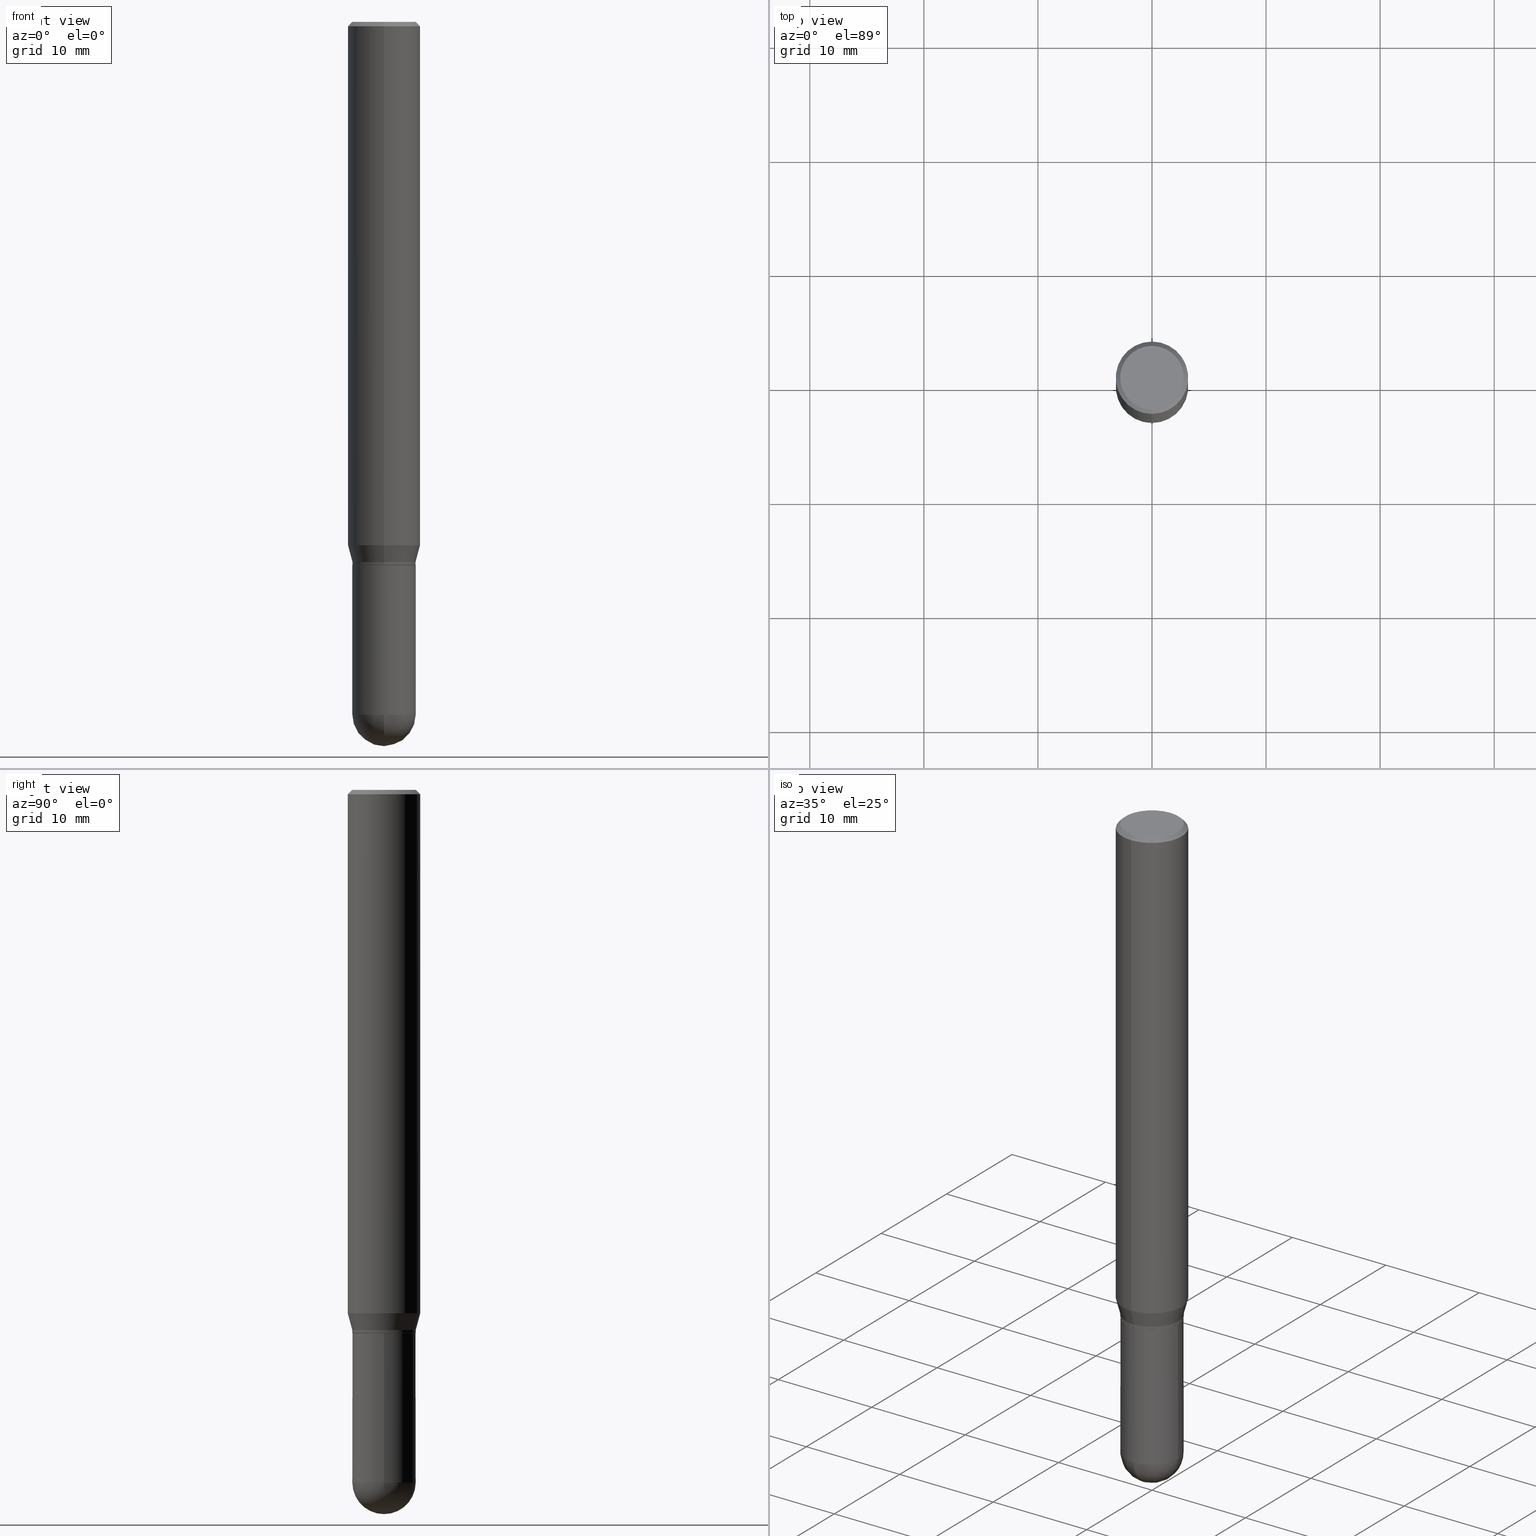
[diagram: canonical four-view strip — front | top / right | iso, engineering-drawing reading convention]
A machine part, canonical four-view strip (front | top / right | iso — engineering-drawing reading convention). The complete STEP part file that produces these views, byte-faithful:
ISO-10303-21;
HEADER;
FILE_DESCRIPTION (( 'STEP AP203' ),
    '1' );
FILE_NAME ('30864.STEP',
    '2024-03-08T15:39:26',
    ( '' ),
    ( '' ),
    'SwSTEP 2.0',
    'SolidWorks 2023',
    '' );
FILE_SCHEMA (( 'CONFIG_CONTROL_DESIGN' ));
ENDSEC;

DATA;
#1 = ORIENTED_EDGE ( 'NONE', *, *, #460, .T. ) ;
#2 = CALENDAR_DATE ( 2024, 8, 3 ) ;
#3 = CARTESIAN_POINT ( 'NONE',  ( 4.585254011597131119E-29, -6.546527510330898707E-15, -1.875000000000000000 ) ) ;
#4 = ADVANCED_FACE ( 'NONE', ( #232 ), #341, .T. ) ;
#5 = DIRECTION ( 'NONE',  ( 4.937700262164543309E-15, 0.7071067811865444641, -0.7071067811865505703 ) ) ;
#6 = ADVANCED_FACE ( 'NONE', ( #311 ), #502, .F. ) ;
#7 = APPROVAL_PERSON_ORGANIZATION ( #441, #371, #352 ) ;
#8 = DIRECTION ( 'NONE',  ( -6.982962677686265133E-15, -1.000000000000000000, 2.508584016220627649E-15 ) ) ;
#9 = AXIS2_PLACEMENT_3D ( 'NONE', #129, #236, #316 ) ;
#10 = CARTESIAN_POINT ( 'NONE',  ( 4.560450599855679736E-29, -6.512112089099771306E-15, -1.864999999999999991 ) ) ;
#11 = CARTESIAN_POINT ( 'NONE',  ( 7.773337529215939572E-16, 0.1093999999999932665, -1.874500000000000499 ) ) ;
#12 = EDGE_CURVE ( 'NONE', #175, #270, #33, .T. ) ;
#13 = PRODUCT_DEFINITION_SHAPE ( 'NONE', 'NONE',  #499 ) ;
#14 = AXIS2_PLACEMENT_3D ( 'NONE', #41, #136, #444 ) ;
#15 = DIRECTION ( 'NONE',  ( -6.982962677686265133E-15, -1.000000000000000000, 2.508584016220627649E-15 ) ) ;
#16 = LOCAL_TIME ( 10, 39, 26.00000000000000000, #50 ) ;
#17 = CARTESIAN_POINT ( 'NONE',  ( 4.584903418085470008E-29, -6.547029580194142106E-15, -1.875000000000000000 ) ) ;
#18 = ORIENTED_EDGE ( 'NONE', *, *, #263, .F. ) ;
#19 = PRODUCT ( '30864', '30864', '', ( #471 ) ) ;
#20 = FACE_OUTER_BOUND ( 'NONE', #430, .T. ) ;
#21 = DIRECTION ( 'NONE',  ( -2.445468806185136597E-29, 3.491481338843145583E-15, 1.000000000000000000 ) ) ;
#22 = VECTOR ( 'NONE', #445, 39.37007874015748143 ) ;
#23 = VERTEX_POINT ( 'NONE', #124 ) ;
#24 = CIRCLE ( 'NONE', #161, 0.1250000000000000000 ) ;
#25 = DESIGN_CONTEXT ( 'detailed design', #376, 'design' ) ;
#26 = CIRCLE ( 'NONE', #351, 0.1093999999999999695 ) ;
#27 = FACE_OUTER_BOUND ( 'NONE', #152, .T. ) ;
#28 = ORIENTED_EDGE ( 'NONE', *, *, #247, .T. ) ;
#29 = FACE_OUTER_BOUND ( 'NONE', #302, .T. ) ;
#30 = ORIENTED_EDGE ( 'NONE', *, *, #276, .F. ) ;
#31 =( LENGTH_UNIT ( ) NAMED_UNIT ( * ) SI_UNIT ( $, .METRE. ) );
#32 = ORIENTED_EDGE ( 'NONE', *, *, #315, .T. ) ;
#33 = CIRCLE ( 'NONE', #242, 0.1093999999999999140 ) ;
#34 = CARTESIAN_POINT ( 'NONE',  ( 0.000000000000000000, 0.000000000000000000, 0.000000000000000000 ) ) ;
#35 = ORIENTED_EDGE ( 'NONE', *, *, #315, .F. ) ;
#36 = CARTESIAN_POINT ( 'NONE',  ( 4.584903418085470008E-29, -6.547029580194142106E-15, -1.875000000000000000 ) ) ;
#37 = VERTEX_POINT ( 'NONE', #279 ) ;
#38 = DIRECTION ( 'NONE',  ( 2.445281822978917058E-29, -3.491749109436874948E-15, -1.000000000000000000 ) ) ;
#39 = ORIENTED_EDGE ( 'NONE', *, *, #466, .F. ) ;
#40 = EDGE_CURVE ( 'NONE', #505, #294, #162, .T. ) ;
#41 = CARTESIAN_POINT ( 'NONE',  ( 0.000000000000000000, 0.000000000000000000, 0.000000000000000000 ) ) ;
#42 = AXIS2_PLACEMENT_3D ( 'NONE', #399, #277, #201 ) ;
#43 = AXIS2_PLACEMENT_3D ( 'NONE', #104, #367, #256 ) ;
#44 = CARTESIAN_POINT ( 'NONE',  ( 7.773337529215944502E-16, 0.1093999999999934053, -1.865000000000000213 ) ) ;
#45 = PLANE ( 'NONE',  #464 ) ;
#46 = EDGE_CURVE ( 'NONE', #375, #364, #512, .T. ) ;
#47 = DIRECTION ( 'NONE',  ( 1.000000000000000000, -6.982962677686265922E-15, 4.883557194083112340E-29 ) ) ;
#48 = CLOSED_SHELL ( 'NONE', ( #347, #312, #213, #273, #334 ) ) ;
#49 = DIRECTION ( 'NONE',  ( -2.445468806185136597E-29, 3.491481338843145583E-15, 1.000000000000000000 ) ) ;
#50 = COORDINATED_UNIVERSAL_TIME_OFFSET ( 5, 0, .BEHIND. ) ;
#51 = CARTESIAN_POINT ( 'NONE',  ( 7.737810392427948336E-16, 0.1088999999999934604, -1.875000000000000444 ) ) ;
#52 = APPROVAL_DATE_TIME ( #54, #85 ) ;
#53 = CARTESIAN_POINT ( 'NONE',  ( 5.836782208862565620E-29, -8.360132924621096591E-15, -2.390600000000000058 ) ) ;
#54 = DATE_AND_TIME ( #400, #16 ) ;
#55 = CARTESIAN_POINT ( 'NONE',  ( 0.000000000000000000, 0.000000000000000000, 0.000000000000000000 ) ) ;
#56 = APPROVAL_DATE_TIME ( #133, #324 ) ;
#57 = DIRECTION ( 'NONE',  ( 1.000000000000000000, -6.982962677686269866E-15, 0.000000000000000000 ) ) ;
#58 = EDGE_LOOP ( 'NONE', ( #139, #32, #188, #30 ) ) ;
#59 = EDGE_CURVE ( 'NONE', #339, #37, #260, .T. ) ;
#60 = DIRECTION ( 'NONE',  ( -1.000000000000000000, 6.982962677686265922E-15, -4.883557194083112340E-29 ) ) ;
#61 = ORIENTED_EDGE ( 'NONE', *, *, #127, .T. ) ;
#62 = CARTESIAN_POINT ( 'NONE',  ( -8.728703347107832402E-16, -0.1250000000000000000, 4.364686386796093686E-16 ) ) ;
#63 = VECTOR ( 'NONE', #504, 39.37007874015748143 ) ;
#64 = ORIENTED_EDGE ( 'NONE', *, *, #46, .F. ) ;
#65 = EDGE_CURVE ( 'NONE', #175, #330, #83, .T. ) ;
#66 = DIRECTION ( 'NONE',  ( -6.982962677686265922E-15, -1.000000000000000000, 3.491749109436874948E-15 ) ) ;
#67 = EDGE_CURVE ( 'NONE', #446, #115, #122, .T. ) ;
#68 = DIRECTION ( 'NONE',  ( -6.982962677686265922E-15, -1.000000000000000000, 3.491749109436874554E-15 ) ) ;
#69 = EDGE_LOOP ( 'NONE', ( #463, #193 ) ) ;
#70 = DIRECTION ( 'NONE',  ( -2.445468806185136877E-29, 3.491481338843145188E-15, 1.000000000000000000 ) ) ;
#71 = VERTEX_POINT ( 'NONE', #237 ) ;
#72 = LOCAL_TIME ( 10, 39, 26.00000000000000000, #274 ) ;
#73 = AXIS2_PLACEMENT_3D ( 'NONE', #353, #410, #94 ) ;
#74 = DIRECTION ( 'NONE',  ( -6.982962677686265922E-15, -1.000000000000000000, 4.370956789862821150E-15 ) ) ;
#75 = DIRECTION ( 'NONE',  ( -2.445281822978917058E-29, 3.491749109436874948E-15, 1.000000000000000000 ) ) ;
#76 = EDGE_CURVE ( 'NONE', #23, #505, #198, .T. ) ;
#77 = DIRECTION ( 'NONE',  ( -6.982962677686265922E-15, -1.000000000000000000, 3.491749109436874948E-15 ) ) ;
#78 = EDGE_LOOP ( 'NONE', ( #305, #135 ) ) ;
#79 = PERSON_AND_ORGANIZATION_ROLE ( 'creator' ) ;
#80 = FACE_OUTER_BOUND ( 'NONE', #210, .T. ) ;
#81 = EDGE_CURVE ( 'NONE', #446, #328, #320, .T. ) ;
#82 = DIRECTION ( 'NONE',  ( 5.024295867788147587E-15, 0.7071067811865620056, 0.7071067811865330288 ) ) ;
#83 = LINE ( 'NONE', #318, #170 ) ;
#84 = FACE_OUTER_BOUND ( 'NONE', #144, .T. ) ;
#85 = APPROVAL ( #92, 'UNSPECIFIED' ) ;
#86 = APPROVAL_STATUS ( 'not_yet_approved' ) ;
#87 = AXIS2_PLACEMENT_3D ( 'NONE', #10, #478, #126 ) ;
#88 = CC_DESIGN_APPROVAL ( #324, ( #499 ) ) ;
#89 = CLOSED_SHELL ( 'NONE', ( #4, #303, #496, #391, #123, #337, #428, #183, #6, #357, #485, #96 ) ) ;
#90 = DIRECTION ( 'NONE',  ( -4.937700262164631661E-15, -0.7071067811865571207, 0.7071067811865379138 ) ) ;
#91 = CONICAL_SURFACE ( 'NONE', #373, 0.1093999999999999140, 0.2617993877991502960 ) ;
#92 = APPROVAL_STATUS ( 'not_yet_approved' ) ;
#93 = EDGE_CURVE ( 'NONE', #509, #37, #200, .T. ) ;
#94 = DIRECTION ( 'NONE',  ( -6.982962677686265922E-15, -1.000000000000000000, 2.497118824190370411E-15 ) ) ;
#95 = SECURITY_CLASSIFICATION_LEVEL ( 'unclassified' ) ;
#96 = ADVANCED_FACE ( 'NONE', ( #278 ), #437, .T. ) ;
#97 = CARTESIAN_POINT ( 'NONE',  ( 8.881784197001251337E-16, 0.1250000000000000000, -4.364686386796093686E-16 ) ) ;
#98 = PERSON_AND_ORGANIZATION_ROLE ( 'creator' ) ;
#99 = AXIS2_PLACEMENT_3D ( 'NONE', #299, #38, #345 ) ;
#100 = FACE_OUTER_BOUND ( 'NONE', #422, .T. ) ;
#101 = ORIENTED_EDGE ( 'NONE', *, *, #380, .T. ) ;
#102 = CARTESIAN_POINT ( 'NONE',  ( 7.773337529215488935E-16, 0.1093999999999999140, -3.819973525723938425E-16 ) ) ;
#103 = EDGE_LOOP ( 'NONE', ( #369, #470, #296, #186 ) ) ;
#104 = CARTESIAN_POINT ( 'NONE',  ( 0.000000000000000000, 0.000000000000000000, 0.000000000000000000 ) ) ;
#105 = ORIENTED_EDGE ( 'NONE', *, *, #93, .T. ) ;
#106 = CARTESIAN_POINT ( 'NONE',  ( 4.585254011597131119E-29, -6.546527510330898707E-15, -1.875000000000000000 ) ) ;
#107 = AXIS2_PLACEMENT_3D ( 'NONE', #442, #295, #215 ) ;
#108 = EDGE_LOOP ( 'NONE', ( #491, #298, #227, #255 ) ) ;
#109 = AXIS2_PLACEMENT_3D ( 'NONE', #415, #297, #66 ) ;
#110 = CYLINDRICAL_SURFACE ( 'NONE', #240, 0.1250000000000000000 ) ;
#111 = ORIENTED_EDGE ( 'NONE', *, *, #40, .T. ) ;
#112 = FACE_OUTER_BOUND ( 'NONE', #103, .T. ) ;
#113 = EDGE_LOOP ( 'NONE', ( #18, #223, #417, #177 ) ) ;
#114 = LINE ( 'NONE', #348, #63 ) ;
#115 = VERTEX_POINT ( 'NONE', #11 ) ;
#116 = CIRCLE ( 'NONE', #395, 0.1250000000000000000 ) ;
#117 = DIRECTION ( 'NONE',  ( -2.445281822978917058E-29, 3.491749109436874948E-15, 1.000000000000000000 ) ) ;
#118 = ORIENTED_EDGE ( 'NONE', *, *, #245, .F. ) ;
#119 = PERSON_AND_ORGANIZATION ( #409, #424 ) ;
#120 = CARTESIAN_POINT ( 'NONE',  ( 7.681258945454894762E-16, 0.1100000000000000283, -3.532678750746533168E-16 ) ) ;
#121 = DIRECTION ( 'NONE',  ( -1.000000000000000000, 6.982962677686265922E-15, -4.876176775795935793E-29 ) ) ;
#122 = LINE ( 'NONE', #51, #207 ) ;
#123 = ADVANCED_FACE ( 'NONE', ( #84 ), #292, .T. ) ;
#124 = CARTESIAN_POINT ( 'NONE',  ( -0.1093999999999999972, -6.669297646563111468E-15, -2.390600000000000058 ) ) ;
#125 = PERSON_AND_ORGANIZATION ( #409, #424 ) ;
#126 = DIRECTION ( 'NONE',  ( -6.982962677686265922E-15, -1.000000000000000000, 2.497118824190370411E-15 ) ) ;
#127 = EDGE_CURVE ( 'NONE', #325, #339, #448, .T. ) ;
#128 = APPROVAL_DATE_TIME ( #326, #371 ) ;
#129 = CARTESIAN_POINT ( 'NONE',  ( 3.667922734468360820E-31, -5.237623664155290976E-17, -0.01499999999999993873 ) ) ;
#130 = CIRCLE ( 'NONE', #181, 0.1093999999999999972 ) ;
#131 = EDGE_CURVE ( 'NONE', #270, #175, #194, .T. ) ;
#132 = UNCERTAINTY_MEASURE_WITH_UNIT (LENGTH_MEASURE( 1.000000000000000082E-05 ), #465, 'distance_accuracy_value', 'NONE');
#133 = DATE_AND_TIME ( #241, #308 ) ;
#134 = DIRECTION ( 'NONE',  ( -1.000000000000000000, 7.105427357601001070E-15, -4.926315508542082329E-29 ) ) ;
#135 = ORIENTED_EDGE ( 'NONE', *, *, #81, .F. ) ;
#136 = DIRECTION ( 'NONE',  ( 0.000000000000000000, 0.000000000000000000, 1.000000000000000000 ) ) ;
#137 = CARTESIAN_POINT ( 'NONE',  ( -1.507493109710656302E-45, 2.152630291465505922E-31, 6.164905392680595126E-17 ) ) ;
#138 = CARTESIAN_POINT ( 'NONE',  ( 0.1093999999999999972, -8.210567516423539018E-15, -2.390600000000000058 ) ) ;
#139 = ORIENTED_EDGE ( 'NONE', *, *, #93, .F. ) ;
#140 = AXIS2_PLACEMENT_3D ( 'NONE', #407, #327, #412 ) ;
#141 = CYLINDRICAL_SURFACE ( 'NONE', #43, 0.1093999999999999972 ) ;
#142 = ORIENTED_EDGE ( 'NONE', *, *, #276, .T. ) ;
#143 = FACE_OUTER_BOUND ( 'NONE', #309, .T. ) ;
#144 = EDGE_LOOP ( 'NONE', ( #149, #500, #190, #507 ) ) ;
#145 = DIRECTION ( 'NONE',  ( -2.445281822978917058E-29, 3.491749109436874948E-15, 1.000000000000000000 ) ) ;
#146 = CARTESIAN_POINT ( 'NONE',  ( 4.560450599855679736E-29, -6.512112089099771306E-15, -1.864999999999999991 ) ) ;
#147 = CC_DESIGN_PERSON_AND_ORGANIZATION_ASSIGNMENT ( #429, #79, ( #154 ) ) ;
#148 = CARTESIAN_POINT ( 'NONE',  ( 7.755573960821947898E-16, 0.1088999999999934604, -1.875000000000000444 ) ) ;
#149 = ORIENTED_EDGE ( 'NONE', *, *, #12, .T. ) ;
#150 = CARTESIAN_POINT ( 'NONE',  ( -8.061085147381547495E-16, -0.1100000000000000283, 4.457414559648622375E-16 ) ) ;
#151 = ORIENTED_EDGE ( 'NONE', *, *, #40, .F. ) ;
#152 = EDGE_LOOP ( 'NONE', ( #35, #105, #291, #266 ) ) ;
#153 = CIRCLE ( 'NONE', #168, 0.1088999999999999968 ) ;
#154 = PRODUCT_DEFINITION_FORMATION_WITH_SPECIFIED_SOURCE ( 'ANY', '', #19, .NOT_KNOWN. ) ;
#155 = AXIS2_PLACEMENT_3D ( 'NONE', #55, #184, #340 ) ;
#156 = ORIENTED_EDGE ( 'NONE', *, *, #451, .F. ) ;
#157 = COORDINATED_UNIVERSAL_TIME_OFFSET ( 5, 0, .BEHIND. ) ;
#158 = CARTESIAN_POINT ( 'NONE',  ( 5.836782208862565620E-29, -8.360132924621096591E-15, -2.390600000000000058 ) ) ;
#159 = DIRECTION ( 'NONE',  ( 2.438088387897960049E-29, -3.491481338843145188E-15, -1.000000000000000000 ) ) ;
#160 = EDGE_CURVE ( 'NONE', #328, #300, #280, .T. ) ;
#161 = AXIS2_PLACEMENT_3D ( 'NONE', #267, #225, #74 ) ;
#162 = CIRCLE ( 'NONE', #456, 0.1093999999999999972 ) ;
#163 = CARTESIAN_POINT ( 'NONE',  ( 4.584903418085470008E-29, -6.547029580194142106E-15, -1.875000000000000000 ) ) ;
#164 = DIRECTION ( 'NONE',  ( 1.000000000000000000, -6.982962677686269866E-15, 0.000000000000000000 ) ) ;
#165 = PERSON_AND_ORGANIZATION ( #409, #424 ) ;
#166 = EDGE_CURVE ( 'NONE', #71, #375, #244, .T. ) ;
#167 = CARTESIAN_POINT ( 'NONE',  ( -7.604446355999884163E-16, -0.1089000000000065332, -1.874999999999999778 ) ) ;
#168 = AXIS2_PLACEMENT_3D ( 'NONE', #362, #492, #15 ) ;
#169 = VECTOR ( 'NONE', #385, 39.37007874015748143 ) ;
#170 = VECTOR ( 'NONE', #197, 39.37007874015748143 ) ;
#171 = LINE ( 'NONE', #97, #482 ) ;
#172 = ORIENTED_EDGE ( 'NONE', *, *, #365, .F. ) ;
#173 = COORDINATED_UNIVERSAL_TIME_OFFSET ( 5, 0, .BEHIND. ) ;
#174 = DIRECTION ( 'NONE',  ( -2.445281822978917058E-29, 3.491749109436874948E-15, 1.000000000000000000 ) ) ;
#175 = VERTEX_POINT ( 'NONE', #483 ) ;
#176 = DIRECTION ( 'NONE',  ( -6.982962677686265922E-15, -1.000000000000000000, 2.497118824190370411E-15 ) ) ;
#177 = ORIENTED_EDGE ( 'NONE', *, *, #131, .F. ) ;
#178 = VECTOR ( 'NONE', #70, 39.37007874015748143 ) ;
#179 = FACE_OUTER_BOUND ( 'NONE', #58, .T. ) ;
#180 = ORIENTED_EDGE ( 'NONE', *, *, #67, .T. ) ;
#181 = AXIS2_PLACEMENT_3D ( 'NONE', #293, #21, #57 ) ;
#182 = DIRECTION ( 'NONE',  ( -2.445281822978917058E-29, 3.491749109436874948E-15, 1.000000000000000000 ) ) ;
#183 = ADVANCED_FACE ( 'NONE', ( #393 ), #307, .T. ) ;
#184 = DIRECTION ( 'NONE',  ( -2.445468806185136597E-29, 3.491481338843145583E-15, 1.000000000000000000 ) ) ;
#185 = EDGE_LOOP ( 'NONE', ( #230, #272, #61, #101, #151 ) ) ;
#186 = ORIENTED_EDGE ( 'NONE', *, *, #453, .F. ) ;
#187 = DIRECTION ( 'NONE',  ( -2.445281822978917058E-29, 3.491749109436874948E-15, 1.000000000000000000 ) ) ;
#188 = ORIENTED_EDGE ( 'NONE', *, *, #268, .F. ) ;
#189 = DIRECTION ( 'NONE',  ( -2.445281822978917058E-29, 3.491749109436874948E-15, 1.000000000000000000 ) ) ;
#190 = ORIENTED_EDGE ( 'NONE', *, *, #460, .F. ) ;
#191 = CC_DESIGN_PERSON_AND_ORGANIZATION_ASSIGNMENT ( #359, #249, ( #382 ) ) ;
#192 = FACE_OUTER_BOUND ( 'NONE', #78, .T. ) ;
#193 = ORIENTED_EDGE ( 'NONE', *, *, #451, .T. ) ;
#194 = CIRCLE ( 'NONE', #87, 0.1093999999999999140 ) ;
#195 = CIRCLE ( 'NONE', #214, 0.1250000000000000000 ) ;
#196 = DIRECTION ( 'NONE',  ( 1.839019923739600315E-15, 0.2588190451025249583, 0.9659258262890670910 ) ) ;
#197 = DIRECTION ( 'NONE',  ( -1.807323732225330139E-15, -0.2588190451025181860, 0.9659258262890689783 ) ) ;
#198 = LINE ( 'NONE', #354, #503 ) ;
#199 = CONICAL_SURFACE ( 'NONE', #251, 0.1088999999999999968, 0.7853981633974653764 ) ;
#200 = CIRCLE ( 'NONE', #454, 0.1093999999999999695 ) ;
#201 = DIRECTION ( 'NONE',  ( 1.000000000000000000, -6.982962677686269866E-15, 0.000000000000000000 ) ) ;
#202 =( NAMED_UNIT ( * ) PLANE_ANGLE_UNIT ( ) SI_UNIT ( $, .RADIAN. ) );
#203 = CARTESIAN_POINT ( 'NONE',  ( 0.000000000000000000, 0.000000000000000000, 0.000000000000000000 ) ) ;
#204 = APPLICATION_PROTOCOL_DEFINITION ( 'international standard', 'config_control_design', 1994, #376 ) ;
#205 = CYLINDRICAL_SURFACE ( 'NONE', #155, 0.1093999999999999972 ) ;
#206 = COORDINATED_UNIVERSAL_TIME_OFFSET ( 5, 0, .BEHIND. ) ;
#207 = VECTOR ( 'NONE', #82, 39.37007874015748143 ) ;
#208 = DIRECTION ( 'NONE',  ( -2.445281822978917058E-29, 3.491749109436874948E-15, 1.000000000000000000 ) ) ;
#209 = DIRECTION ( 'NONE',  ( -7.105427357601000281E-15, -1.000000000000000000, 0.000000000000000000 ) ) ;
#210 = EDGE_LOOP ( 'NONE', ( #488, #111 ) ) ;
#211 = CARTESIAN_POINT ( 'NONE',  ( -7.639361169388317193E-16, -0.1094000000000065614, -1.874499999999999833 ) ) ;
#212 = ORIENTED_EDGE ( 'NONE', *, *, #252, .T. ) ;
#213 = ADVANCED_FACE ( 'NONE', ( #80 ), #45, .F. ) ;
#214 = AXIS2_PLACEMENT_3D ( 'NONE', #498, #248, #404 ) ;
#215 = DIRECTION ( 'NONE',  ( 1.000000000000000000, -6.982962677686269866E-15, 0.000000000000000000 ) ) ;
#216 = AXIS2_PLACEMENT_3D ( 'NONE', #120, #275, #461 ) ;
#217 = ORIENTED_EDGE ( 'NONE', *, *, #476, .F. ) ;
#218 = CIRCLE ( 'NONE', #239, 0.1100000000000000283 ) ;
#219 = EDGE_CURVE ( 'NONE', #270, #384, #234, .T. ) ;
#220 = PLANE ( 'NONE',  #322 ) ;
#221 = ORIENTED_EDGE ( 'NONE', *, *, #166, .F. ) ;
#222 = CARTESIAN_POINT ( 'NONE',  ( -8.575622497214409523E-16, -0.1250000000000000555, -0.01499999999999949984 ) ) ;
#223 = ORIENTED_EDGE ( 'NONE', *, *, #453, .T. ) ;
#224 = EDGE_CURVE ( 'NONE', #300, #115, #331, .T. ) ;
#225 = DIRECTION ( 'NONE',  ( -2.445281822978917058E-29, 3.491749109436874948E-15, 1.000000000000000000 ) ) ;
#226 =( GEOMETRIC_REPRESENTATION_CONTEXT ( 3 ) GLOBAL_UNCERTAINTY_ASSIGNED_CONTEXT ( ( #132 ) ) GLOBAL_UNIT_ASSIGNED_CONTEXT ( ( #465, #202, #486 ) ) REPRESENTATION_CONTEXT ( 'NONE', 'WORKASPACE' ) );
#227 = ORIENTED_EDGE ( 'NONE', *, *, #12, .F. ) ;
#228 = AXIS2_PLACEMENT_3D ( 'NONE', #238, #49, #358 ) ;
#229 = LINE ( 'NONE', #222, #169 ) ;
#230 = ORIENTED_EDGE ( 'NONE', *, *, #76, .F. ) ;
#231 = CARTESIAN_POINT ( 'NONE',  ( 0.1093999999999999972, -7.639361169388775718E-16, 5.334537392720753909E-30 ) ) ;
#232 = FACE_OUTER_BOUND ( 'NONE', #108, .T. ) ;
#233 = CALENDAR_DATE ( 2024, 8, 3 ) ;
#234 = LINE ( 'NONE', #44, #370 ) ;
#235 = CC_DESIGN_DATE_AND_TIME_ASSIGNMENT ( #480, #313, ( #499 ) ) ;
#236 = DIRECTION ( 'NONE',  ( 2.445281822978917058E-29, -3.491749109436874948E-15, -1.000000000000000000 ) ) ;
#237 = CARTESIAN_POINT ( 'NONE',  ( 8.204981146281365554E-16, 0.1100000000000000283, -3.224433481112504089E-16 ) ) ;
#238 = CARTESIAN_POINT ( 'NONE',  ( 5.846137728066187200E-29, -8.346735288638422607E-15, -2.390600000000000058 ) ) ;
#239 = AXIS2_PLACEMENT_3D ( 'NONE', #137, #208, #250 ) ;
#240 = AXIS2_PLACEMENT_3D ( 'NONE', #34, #187, #419 ) ;
#241 = CALENDAR_DATE ( 2024, 8, 3 ) ;
#242 = AXIS2_PLACEMENT_3D ( 'NONE', #146, #458, #394 ) ;
#243 = AXIS2_PLACEMENT_3D ( 'NONE', #17, #174, #368 ) ;
#244 = LINE ( 'NONE', #319, #414 ) ;
#245 = EDGE_CURVE ( 'NONE', #71, #426, #218, .T. ) ;
#246 = APPROVAL_ROLE ( '' ) ;
#247 = EDGE_CURVE ( 'NONE', #328, #446, #153, .T. ) ;
#248 = DIRECTION ( 'NONE',  ( -2.445281822978917058E-29, 3.491749109436874948E-15, 1.000000000000000000 ) ) ;
#249 = PERSON_AND_ORGANIZATION_ROLE ( 'classification_officer' ) ;
#250 = DIRECTION ( 'NONE',  ( -6.982962677686265922E-15, -1.000000000000000000, 3.491749109436874948E-15 ) ) ;
#251 = AXIS2_PLACEMENT_3D ( 'NONE', #36, #189, #383 ) ;
#252 = EDGE_CURVE ( 'NONE', #384, #375, #171, .T. ) ;
#253 = SPHERICAL_SURFACE ( 'NONE', #140, 0.1093999999999999695 ) ;
#254 = CARTESIAN_POINT ( 'NONE',  ( 5.836782208862565620E-29, -8.360132924621096591E-15, -2.390600000000000058 ) ) ;
#255 = ORIENTED_EDGE ( 'NONE', *, *, #401, .F. ) ;
#256 = DIRECTION ( 'NONE',  ( 1.000000000000000000, -6.982962677686266711E-15, 4.876176775795935793E-29 ) ) ;
#257 = ORIENTED_EDGE ( 'NONE', *, *, #131, .T. ) ;
#258 = EDGE_CURVE ( 'NONE', #330, #364, #402, .T. ) ;
#259 = VECTOR ( 'NONE', #286, 39.37007874015748143 ) ;
#260 = CIRCLE ( 'NONE', #42, 0.1093999999999999972 ) ;
#261 = ORIENTED_EDGE ( 'NONE', *, *, #160, .F. ) ;
#262 = FACE_OUTER_BOUND ( 'NONE', #450, .T. ) ;
#263 = EDGE_CURVE ( 'NONE', #115, #270, #487, .T. ) ;
#264 = ORIENTED_EDGE ( 'NONE', *, *, #258, .F. ) ;
#265 = FACE_OUTER_BOUND ( 'NONE', #443, .T. ) ;
#266 = ORIENTED_EDGE ( 'NONE', *, *, #127, .F. ) ;
#267 = CARTESIAN_POINT ( 'NONE',  ( 4.418086310221640992E-29, -6.308822481794022912E-15, -1.806780007401925348 ) ) ;
#268 = EDGE_CURVE ( 'NONE', #23, #325, #130, .T. ) ;
#269 = APPROVAL_PERSON_ORGANIZATION ( #398, #85, #246 ) ;
#270 = VERTEX_POINT ( 'NONE', #374 ) ;
#271 = CARTESIAN_POINT ( 'NONE',  ( -8.728703347107828458E-16, -0.1250000000000000555, -0.01499999999999949984 ) ) ;
#272 = ORIENTED_EDGE ( 'NONE', *, *, #268, .T. ) ;
#273 = ADVANCED_FACE ( 'NONE', ( #27 ), #335, .T. ) ;
#274 = COORDINATED_UNIVERSAL_TIME_OFFSET ( 5, 0, .BEHIND. ) ;
#275 = DIRECTION ( 'NONE',  ( 2.445281822978917058E-29, -3.491749109436874554E-15, -1.000000000000000000 ) ) ;
#276 = EDGE_CURVE ( 'NONE', #37, #23, #436, .T. ) ;
#277 = DIRECTION ( 'NONE',  ( -2.445468806185136597E-29, 3.491481338843145583E-15, 1.000000000000000000 ) ) ;
#278 = FACE_OUTER_BOUND ( 'NONE', #113, .T. ) ;
#279 = CARTESIAN_POINT ( 'NONE',  ( 7.639361169389358489E-16, 0.1093999999999916289, -2.390600000000000058 ) ) ;
#280 = LINE ( 'NONE', #167, #484 ) ;
#281 = CC_DESIGN_PERSON_AND_ORGANIZATION_ASSIGNMENT ( #125, #283, ( #154 ) ) ;
#282 = CC_DESIGN_SECURITY_CLASSIFICATION ( #382, ( #154 ) ) ;
#283 = PERSON_AND_ORGANIZATION_ROLE ( 'design_supplier' ) ;
#284 = AXIS2_PLACEMENT_3D ( 'NONE', #472, #355, #477 ) ;
#285 = DIRECTION ( 'NONE',  ( -2.445468806185136597E-29, 3.491481338843145583E-15, 1.000000000000000000 ) ) ;
#286 = DIRECTION ( 'NONE',  ( -2.445281822978917058E-29, 3.491749109436874554E-15, 1.000000000000000000 ) ) ;
#287 = ORIENTED_EDGE ( 'NONE', *, *, #59, .T. ) ;
#288 = PERSON_AND_ORGANIZATION_ROLE ( 'design_owner' ) ;
#289 = PRODUCT_RELATED_PRODUCT_CATEGORY ( 'detail', '', ( #19 ) ) ;
#290 = CARTESIAN_POINT ( 'NONE',  ( 0.1093999999999999972, -7.310463627269777068E-15, -1.875000000000000000 ) ) ;
#291 = ORIENTED_EDGE ( 'NONE', *, *, #59, .F. ) ;
#292 = CONICAL_SURFACE ( 'NONE', #284, 0.1093999999999999140, 0.2617993877991502960 ) ;
#293 = CARTESIAN_POINT ( 'NONE',  ( 5.846137728066187200E-29, -8.346735288638422607E-15, -2.390600000000000058 ) ) ;
#294 = VERTEX_POINT ( 'NONE', #290 ) ;
#295 = DIRECTION ( 'NONE',  ( -2.445468806185136597E-29, 3.491481338843145583E-15, 1.000000000000000000 ) ) ;
#296 = ORIENTED_EDGE ( 'NONE', *, *, #160, .T. ) ;
#297 = DIRECTION ( 'NONE',  ( -2.445281822978917058E-29, 3.491749109436874948E-15, 1.000000000000000000 ) ) ;
#298 = ORIENTED_EDGE ( 'NONE', *, *, #263, .T. ) ;
#299 = CARTESIAN_POINT ( 'NONE',  ( 3.667922734468360820E-31, -5.237623664155290976E-17, -0.01499999999999993873 ) ) ;
#300 = VERTEX_POINT ( 'NONE', #211 ) ;
#301 = DIRECTION ( 'NONE',  ( -2.445468806185136597E-29, 3.491481338843145583E-15, 1.000000000000000000 ) ) ;
#302 = EDGE_LOOP ( 'NONE', ( #497, #378, #411, #64 ) ) ;
#303 = ADVANCED_FACE ( 'NONE', ( #100 ), #467, .T. ) ;
#304 = DIRECTION ( 'NONE',  ( -2.445281822978917058E-29, 3.491749109436874948E-15, 1.000000000000000000 ) ) ;
#305 = ORIENTED_EDGE ( 'NONE', *, *, #247, .F. ) ;
#306 = LENGTH_MEASURE_WITH_UNIT ( LENGTH_MEASURE( 0.02539999999999999897 ), #31 );
#307 = CONICAL_SURFACE ( 'NONE', #9, 0.1250000000000000000, 0.7853981633974473908 ) ;
#308 = LOCAL_TIME ( 10, 39, 26.00000000000000000, #157 ) ;
#309 = EDGE_LOOP ( 'NONE', ( #142, #452, #39, #420, #287 ) ) ;
#310 = CALENDAR_DATE ( 2024, 8, 3 ) ;
#311 = FACE_OUTER_BOUND ( 'NONE', #69, .T. ) ;
#312 = ADVANCED_FACE ( 'NONE', ( #179 ), #253, .T. ) ;
#313 = DATE_TIME_ROLE ( 'creation_date' ) ;
#314 = DIRECTION ( 'NONE',  ( 6.982962677686265133E-15, 1.000000000000000000, 0.000000000000000000 ) ) ;
#315 = EDGE_CURVE ( 'NONE', #509, #325, #26, .T. ) ;
#316 = DIRECTION ( 'NONE',  ( 6.982962677686265922E-15, 1.000000000000000000, -3.500180241882337261E-15 ) ) ;
#317 = CARTESIAN_POINT ( 'NONE',  ( 3.667922734468360820E-31, -5.237623664155290976E-17, -0.01499999999999993873 ) ) ;
#318 = CARTESIAN_POINT ( 'NONE',  ( -7.639361169388312262E-16, -0.1094000000000064227, -1.864999999999999547 ) ) ;
#319 = CARTESIAN_POINT ( 'NONE',  ( 8.728703347107836346E-16, 0.1249999999999999445, -0.01500000000000037588 ) ) ;
#320 = CIRCLE ( 'NONE', #439, 0.1088999999999999968 ) ;
#321 = CIRCLE ( 'NONE', #431, 0.1093999999999999140 ) ;
#322 = AXIS2_PLACEMENT_3D ( 'NONE', #343, #377, #68 ) ;
#323 = DIRECTION ( 'NONE',  ( -2.445281822978917058E-29, 3.491749109436874554E-15, 1.000000000000000000 ) ) ;
#324 = APPROVAL ( #86, 'UNSPECIFIED' ) ;
#325 = VERTEX_POINT ( 'NONE', #332 ) ;
#326 = DATE_AND_TIME ( #2, #72 ) ;
#327 = DIRECTION ( 'NONE',  ( -1.000000000000000000, 6.982962677686265922E-15, -4.883557194083112340E-29 ) ) ;
#328 = VERTEX_POINT ( 'NONE', #440 ) ;
#329 = CARTESIAN_POINT ( 'NONE',  ( -8.728703347107391626E-16, -0.1250000000000063283, -1.806780007401924681 ) ) ;
#330 = VERTEX_POINT ( 'NONE', #329 ) ;
#331 = CIRCLE ( 'NONE', #73, 0.1093999999999999140 ) ;
#332 = CARTESIAN_POINT ( 'NONE',  ( -7.773337529214909122E-16, -0.1094000000000083378, -2.390599999999999614 ) ) ;
#333 = ORIENTED_EDGE ( 'NONE', *, *, #65, .T. ) ;
#334 = ADVANCED_FACE ( 'NONE', ( #495 ), #141, .T. ) ;
#335 = SPHERICAL_SURFACE ( 'NONE', #397, 0.1093999999999999695 ) ;
#336 = EDGE_LOOP ( 'NONE', ( #217, #118, #493, #346 ) ) ;
#337 = ADVANCED_FACE ( 'NONE', ( #20 ), #91, .T. ) ;
#338 = CARTESIAN_POINT ( 'NONE',  ( 4.583680777173981139E-29, -6.545283705639422896E-15, -1.874500000000000277 ) ) ;
#339 = VERTEX_POINT ( 'NONE', #138 ) ;
#340 = DIRECTION ( 'NONE',  ( 1.000000000000000000, -6.982962677686266711E-15, 4.876176775795935793E-29 ) ) ;
#341 = CYLINDRICAL_SURFACE ( 'NONE', #475, 0.1093999999999999140 ) ;
#342 = EDGE_CURVE ( 'NONE', #384, #330, #195, .T. ) ;
#343 = CARTESIAN_POINT ( 'NONE',  ( 4.584903418085470008E-29, -6.547029580194142106E-15, -1.875000000000000000 ) ) ;
#344 = ORIENTED_EDGE ( 'NONE', *, *, #219, .F. ) ;
#345 = DIRECTION ( 'NONE',  ( 6.982962677686265922E-15, 1.000000000000000000, -3.500180241882337261E-15 ) ) ;
#346 = ORIENTED_EDGE ( 'NONE', *, *, #46, .T. ) ;
#347 = ADVANCED_FACE ( 'NONE', ( #143 ), #205, .T. ) ;
#348 = CARTESIAN_POINT ( 'NONE',  ( -7.639361169388768816E-16, -0.1093999999999999140, 3.819973525723938425E-16 ) ) ;
#349 = AXIS2_PLACEMENT_3D ( 'NONE', #501, #117, #77 ) ;
#350 = DIRECTION ( 'NONE',  ( -6.982962677686265922E-15, -1.000000000000000000, 3.491749109436875343E-15 ) ) ;
#351 = AXIS2_PLACEMENT_3D ( 'NONE', #53, #134, #209 ) ;
#352 = APPROVAL_ROLE ( '' ) ;
#353 = CARTESIAN_POINT ( 'NONE',  ( 4.583680777173981139E-29, -6.545283705639422896E-15, -1.874500000000000277 ) ) ;
#354 = CARTESIAN_POINT ( 'NONE',  ( -0.1093999999999999972, 7.773337529215495838E-16, -5.381314988738867416E-30 ) ) ;
#355 = DIRECTION ( 'NONE',  ( -2.445281822978917058E-29, 3.491749109436874948E-15, 1.000000000000000000 ) ) ;
#356 = CONICAL_SURFACE ( 'NONE', #99, 0.1250000000000000000, 0.7853981633974473908 ) ;
#357 = ADVANCED_FACE ( 'NONE', ( #192 ), #220, .F. ) ;
#358 = DIRECTION ( 'NONE',  ( 1.000000000000000000, -6.982962677686269866E-15, 0.000000000000000000 ) ) ;
#359 = PERSON_AND_ORGANIZATION ( #409, #424 ) ;
#360 = DIRECTION ( 'NONE',  ( -6.982962677686265922E-15, -1.000000000000000000, 3.491749109436875343E-15 ) ) ;
#361 = SHAPE_DEFINITION_REPRESENTATION ( #13, #416 ) ;
#362 = CARTESIAN_POINT ( 'NONE',  ( 4.584903418085470008E-29, -6.547029580194142106E-15, -1.875000000000000000 ) ) ;
#363 = CC_DESIGN_APPROVAL ( #371, ( #154 ) ) ;
#364 = VERTEX_POINT ( 'NONE', #271 ) ;
#365 = EDGE_CURVE ( 'NONE', #364, #375, #116, .T. ) ;
#366 = PERSON_AND_ORGANIZATION ( #409, #424 ) ;
#367 = DIRECTION ( 'NONE',  ( -2.445468806185136597E-29, 3.491481338843145583E-15, 1.000000000000000000 ) ) ;
#368 = DIRECTION ( 'NONE',  ( -6.982962677686265133E-15, -1.000000000000000000, 2.508584016220627649E-15 ) ) ;
#369 = ORIENTED_EDGE ( 'NONE', *, *, #67, .F. ) ;
#370 = VECTOR ( 'NONE', #196, 39.37007874015748143 ) ;
#371 = APPROVAL ( #469, 'UNSPECIFIED' ) ;
#372 = LOCAL_TIME ( 10, 39, 26.00000000000000000, #206 ) ;
#373 = AXIS2_PLACEMENT_3D ( 'NONE', #490, #182, #176 ) ;
#374 = CARTESIAN_POINT ( 'NONE',  ( 8.327560863108821759E-16, 0.1093999999999934053, -1.865000000000000213 ) ) ;
#375 = VERTEX_POINT ( 'NONE', #425 ) ;
#376 = APPLICATION_CONTEXT ( 'configuration controlled 3d designs of mechanical parts and assemblies' ) ;
#377 = DIRECTION ( 'NONE',  ( -2.445281822978917058E-29, 3.491749109436874554E-15, 1.000000000000000000 ) ) ;
#378 = ORIENTED_EDGE ( 'NONE', *, *, #342, .T. ) ;
#379 = CARTESIAN_POINT ( 'NONE',  ( 6.108994255861030141E-29, -8.735402165099200357E-15, -2.500000000000000000 ) ) ;
#380 = EDGE_CURVE ( 'NONE', #339, #294, #421, .T. ) ;
#381 = ORIENTED_EDGE ( 'NONE', *, *, #224, .F. ) ;
#382 = SECURITY_CLASSIFICATION ( '', '', #95 ) ;
#383 = DIRECTION ( 'NONE',  ( -6.982962677686265133E-15, -1.000000000000000000, 2.508584016220627649E-15 ) ) ;
#384 = VERTEX_POINT ( 'NONE', #511 ) ;
#385 = DIRECTION ( 'NONE',  ( -4.851104656540959542E-15, -0.7071067811865493491, -0.7071067811865456854 ) ) ;
#386 = ORIENTED_EDGE ( 'NONE', *, *, #342, .F. ) ;
#387 = DIRECTION ( 'NONE',  ( 1.000000000000000000, -6.982962677686269866E-15, 0.000000000000000000 ) ) ;
#388 = CARTESIAN_POINT ( 'NONE',  ( 0.000000000000000000, 0.000000000000000000, 0.000000000000000000 ) ) ;
#389 = DATE_TIME_ROLE ( 'classification_date' ) ;
#390 = CIRCLE ( 'NONE', #405, 0.1093999999999999972 ) ;
#391 = ADVANCED_FACE ( 'NONE', ( #265 ), #462, .T. ) ;
#392 = DIRECTION ( 'NONE',  ( -2.445281822978917058E-29, 3.491749109436874948E-15, 1.000000000000000000 ) ) ;
#393 = FACE_OUTER_BOUND ( 'NONE', #336, .T. ) ;
#394 = DIRECTION ( 'NONE',  ( -6.982962677686265922E-15, -1.000000000000000000, 2.497118824190370411E-15 ) ) ;
#395 = AXIS2_PLACEMENT_3D ( 'NONE', #457, #304, #506 ) ;
#396 = DIRECTION ( 'NONE',  ( -2.445468806185136877E-29, 3.491481338843145188E-15, 1.000000000000000000 ) ) ;
#397 = AXIS2_PLACEMENT_3D ( 'NONE', #254, #60, #449 ) ;
#398 = PERSON_AND_ORGANIZATION ( #409, #424 ) ;
#399 = CARTESIAN_POINT ( 'NONE',  ( 5.846137728066187200E-29, -8.346735288638422607E-15, -2.390600000000000058 ) ) ;
#400 = CALENDAR_DATE ( 2024, 8, 3 ) ;
#401 = EDGE_CURVE ( 'NONE', #300, #175, #114, .T. ) ;
#402 = LINE ( 'NONE', #62, #259 ) ;
#403 = DATE_AND_TIME ( #233, #438 ) ;
#404 = DIRECTION ( 'NONE',  ( -6.982962677686265922E-15, -1.000000000000000000, 4.370956789862821150E-15 ) ) ;
#405 = AXIS2_PLACEMENT_3D ( 'NONE', #106, #301, #387 ) ;
#406 = APPROVAL_ROLE ( '' ) ;
#407 = CARTESIAN_POINT ( 'NONE',  ( 5.836782208862565620E-29, -8.360132924621096591E-15, -2.390600000000000058 ) ) ;
#408 = DIMENSIONAL_EXPONENTS ( 1.000000000000000000, 0.000000000000000000, 0.000000000000000000, 0.000000000000000000, 0.000000000000000000, 0.000000000000000000, 0.000000000000000000 ) ;
#409 = PERSON ( 'UNSPECIFIED', 'UNSPECIFIED', 'UNSPECIFIED', ('UNSPECIFIED'), ('UNSPECIFIED'), ('UNSPECIFIED') ) ;
#410 = DIRECTION ( 'NONE',  ( -2.445281822978917058E-29, 3.491749109436874948E-15, 1.000000000000000000 ) ) ;
#411 = ORIENTED_EDGE ( 'NONE', *, *, #258, .T. ) ;
#412 = DIRECTION ( 'NONE',  ( 6.982962677686265922E-15, 1.000000000000000000, -2.497118824190369227E-15 ) ) ;
#413 = CIRCLE ( 'NONE', #109, 0.1100000000000000283 ) ;
#414 = VECTOR ( 'NONE', #5, 39.37007874015748143 ) ;
#415 = CARTESIAN_POINT ( 'NONE',  ( -1.507493109710656302E-45, 2.152630291465505922E-31, 6.164905392680595126E-17 ) ) ;
#416 = ADVANCED_BREP_SHAPE_REPRESENTATION ( '30864', ( #479, #481, #14 ), #226 ) ;
#417 = ORIENTED_EDGE ( 'NONE', *, *, #401, .T. ) ;
#418 = CC_DESIGN_PERSON_AND_ORGANIZATION_ASSIGNMENT ( #366, #288, ( #19 ) ) ;
#419 = DIRECTION ( 'NONE',  ( -6.982962677686265922E-15, -1.000000000000000000, 3.491749109436874948E-15 ) ) ;
#420 = ORIENTED_EDGE ( 'NONE', *, *, #380, .F. ) ;
#421 = LINE ( 'NONE', #231, #178 ) ;
#422 = EDGE_LOOP ( 'NONE', ( #28, #180, #381, #261 ) ) ;
#423 = APPLICATION_CONTEXT ( 'configuration controlled 3d designs of mechanical parts and assemblies' ) ;
#424 = ORGANIZATION ( 'UNSPECIFIED', 'UNSPECIFIED', '' ) ;
#425 = CARTESIAN_POINT ( 'NONE',  ( 8.881784197001696058E-16, 0.1249999999999999584, -0.01500000000000037588 ) ) ;
#426 = VERTEX_POINT ( 'NONE', #150 ) ;
#427 = ORIENTED_EDGE ( 'NONE', *, *, #476, .T. ) ;
#428 = ADVANCED_FACE ( 'NONE', ( #29 ), #110, .T. ) ;
#429 = PERSON_AND_ORGANIZATION ( #409, #424 ) ;
#430 = EDGE_LOOP ( 'NONE', ( #344, #257, #333, #386 ) ) ;
#431 = AXIS2_PLACEMENT_3D ( 'NONE', #338, #145, #459 ) ;
#432 = DIRECTION ( 'NONE',  ( -6.982962677686265922E-15, -1.000000000000000000, 3.500180241882337261E-15 ) ) ;
#433 = CC_DESIGN_PERSON_AND_ORGANIZATION_ASSIGNMENT ( #119, #98, ( #499 ) ) ;
#434 = DIRECTION ( 'NONE',  ( -2.445281822978917058E-29, 3.491749109436874948E-15, 1.000000000000000000 ) ) ;
#435 = DIRECTION ( 'NONE',  ( -2.445281822978917058E-29, 3.491749109436874948E-15, 1.000000000000000000 ) ) ;
#436 = CIRCLE ( 'NONE', #107, 0.1093999999999999972 ) ;
#437 = CYLINDRICAL_SURFACE ( 'NONE', #494, 0.1093999999999999140 ) ;
#438 = LOCAL_TIME ( 10, 39, 26.00000000000000000, #173 ) ;
#439 = AXIS2_PLACEMENT_3D ( 'NONE', #163, #435, #8 ) ;
#440 = CARTESIAN_POINT ( 'NONE',  ( -7.604446355999884163E-16, -0.1089000000000065332, -1.874999999999999778 ) ) ;
#441 = PERSON_AND_ORGANIZATION ( #409, #424 ) ;
#442 = CARTESIAN_POINT ( 'NONE',  ( 5.846137728066187200E-29, -8.346735288638422607E-15, -2.390600000000000058 ) ) ;
#443 = EDGE_LOOP ( 'NONE', ( #1, #212, #172, #264 ) ) ;
#444 = DIRECTION ( 'NONE',  ( 1.000000000000000000, 0.000000000000000000, 0.000000000000000000 ) ) ;
#445 = DIRECTION ( 'NONE',  ( -2.445281822978917058E-29, 3.491749109436874554E-15, 1.000000000000000000 ) ) ;
#446 = VERTEX_POINT ( 'NONE', #148 ) ;
#447 = AXIS2_PLACEMENT_3D ( 'NONE', #317, #392, #432 ) ;
#448 = CIRCLE ( 'NONE', #228, 0.1093999999999999972 ) ;
#449 = DIRECTION ( 'NONE',  ( 6.982962677686265922E-15, 1.000000000000000000, -2.497118824190369227E-15 ) ) ;
#450 = EDGE_LOOP ( 'NONE', ( #156, #427, #468, #221 ) ) ;
#451 = EDGE_CURVE ( 'NONE', #426, #71, #413, .T. ) ;
#452 = ORIENTED_EDGE ( 'NONE', *, *, #76, .T. ) ;
#453 = EDGE_CURVE ( 'NONE', #115, #300, #321, .T. ) ;
#454 = AXIS2_PLACEMENT_3D ( 'NONE', #158, #47, #314 ) ;
#455 = APPROVAL_PERSON_ORGANIZATION ( #165, #324, #406 ) ;
#456 = AXIS2_PLACEMENT_3D ( 'NONE', #3, #285, #164 ) ;
#457 = CARTESIAN_POINT ( 'NONE',  ( 3.667922734468360820E-31, -5.237623664155290976E-17, -0.01499999999999993873 ) ) ;
#458 = DIRECTION ( 'NONE',  ( -2.445281822978917058E-29, 3.491749109436874948E-15, 1.000000000000000000 ) ) ;
#459 = DIRECTION ( 'NONE',  ( -6.982962677686265922E-15, -1.000000000000000000, 2.497118824190370411E-15 ) ) ;
#460 = EDGE_CURVE ( 'NONE', #330, #384, #24, .T. ) ;
#461 = DIRECTION ( 'NONE',  ( 6.982962677686265922E-15, 1.000000000000000000, -3.491749109436874554E-15 ) ) ;
#462 = CYLINDRICAL_SURFACE ( 'NONE', #349, 0.1250000000000000000 ) ;
#463 = ORIENTED_EDGE ( 'NONE', *, *, #245, .T. ) ;
#464 = AXIS2_PLACEMENT_3D ( 'NONE', #474, #159, #121 ) ;
#465 =( CONVERSION_BASED_UNIT ( 'INCH', #306 ) LENGTH_UNIT ( ) NAMED_UNIT ( #408 ) );
#466 = EDGE_CURVE ( 'NONE', #294, #505, #390, .T. ) ;
#467 = CONICAL_SURFACE ( 'NONE', #243, 0.1088999999999999968, 0.7853981633974653764 ) ;
#468 = ORIENTED_EDGE ( 'NONE', *, *, #365, .T. ) ;
#469 = APPROVAL_STATUS ( 'not_yet_approved' ) ;
#470 = ORIENTED_EDGE ( 'NONE', *, *, #81, .T. ) ;
#471 = MECHANICAL_CONTEXT ( 'NONE', #423, 'mechanical' ) ;
#472 = CARTESIAN_POINT ( 'NONE',  ( 4.560450599855679736E-29, -6.512112089099771306E-15, -1.864999999999999991 ) ) ;
#473 = CC_DESIGN_DATE_AND_TIME_ASSIGNMENT ( #403, #389, ( #382 ) ) ;
#474 = CARTESIAN_POINT ( 'NONE',  ( 7.639361169389233258E-16, 0.1093999999999934608, -1.875000000000000444 ) ) ;
#475 = AXIS2_PLACEMENT_3D ( 'NONE', #388, #75, #350 ) ;
#476 = EDGE_CURVE ( 'NONE', #426, #364, #229, .T. ) ;
#477 = DIRECTION ( 'NONE',  ( -6.982962677686265922E-15, -1.000000000000000000, 2.497118824190370411E-15 ) ) ;
#478 = DIRECTION ( 'NONE',  ( -2.445281822978917058E-29, 3.491749109436874948E-15, 1.000000000000000000 ) ) ;
#479 = MANIFOLD_SOLID_BREP ( 'Body-Move/Copy2[1]', #48 ) ;
#480 = DATE_AND_TIME ( #310, #372 ) ;
#481 = MANIFOLD_SOLID_BREP ( 'Body-Move/Copy2[2]', #89 ) ;
#482 = VECTOR ( 'NONE', #323, 39.37007874015748143 ) ;
#483 = CARTESIAN_POINT ( 'NONE',  ( -7.639361169388312262E-16, -0.1094000000000064227, -1.864999999999999547 ) ) ;
#484 = VECTOR ( 'NONE', #90, 39.37007874015748143 ) ;
#485 = ADVANCED_FACE ( 'NONE', ( #112 ), #199, .T. ) ;
#486 =( NAMED_UNIT ( * ) SI_UNIT ( $, .STERADIAN. ) SOLID_ANGLE_UNIT ( ) );
#487 = LINE ( 'NONE', #102, #22 ) ;
#488 = ORIENTED_EDGE ( 'NONE', *, *, #466, .T. ) ;
#489 = APPLICATION_PROTOCOL_DEFINITION ( 'international standard', 'config_control_design', 1994, #423 ) ;
#490 = CARTESIAN_POINT ( 'NONE',  ( 4.560450599855679736E-29, -6.512112089099771306E-15, -1.864999999999999991 ) ) ;
#491 = ORIENTED_EDGE ( 'NONE', *, *, #224, .T. ) ;
#492 = DIRECTION ( 'NONE',  ( -2.445281822978917058E-29, 3.491749109436874948E-15, 1.000000000000000000 ) ) ;
#493 = ORIENTED_EDGE ( 'NONE', *, *, #166, .T. ) ;
#494 = AXIS2_PLACEMENT_3D ( 'NONE', #203, #434, #360 ) ;
#495 = FACE_OUTER_BOUND ( 'NONE', #185, .T. ) ;
#496 = ADVANCED_FACE ( 'NONE', ( #262 ), #356, .T. ) ;
#497 = ORIENTED_EDGE ( 'NONE', *, *, #252, .F. ) ;
#498 = CARTESIAN_POINT ( 'NONE',  ( 4.418086310221640992E-29, -6.308822481794022912E-15, -1.806780007401925348 ) ) ;
#499 = PRODUCT_DEFINITION ( 'UNKNOWN', '', #154, #25 ) ;
#500 = ORIENTED_EDGE ( 'NONE', *, *, #219, .T. ) ;
#501 = CARTESIAN_POINT ( 'NONE',  ( 0.000000000000000000, 0.000000000000000000, 0.000000000000000000 ) ) ;
#502 = PLANE ( 'NONE',  #216 ) ;
#503 = VECTOR ( 'NONE', #396, 39.37007874015748143 ) ;
#504 = DIRECTION ( 'NONE',  ( -2.445281822978917058E-29, 3.491749109436874554E-15, 1.000000000000000000 ) ) ;
#505 = VERTEX_POINT ( 'NONE', #508 ) ;
#506 = DIRECTION ( 'NONE',  ( -6.982962677686265922E-15, -1.000000000000000000, 3.500180241882337261E-15 ) ) ;
#507 = ORIENTED_EDGE ( 'NONE', *, *, #65, .F. ) ;
#508 = CARTESIAN_POINT ( 'NONE',  ( -0.1093999999999999972, -6.669297646563111468E-15, -1.875000000000000000 ) ) ;
#509 = VERTEX_POINT ( 'NONE', #379 ) ;
#510 = CC_DESIGN_APPROVAL ( #85, ( #382 ) ) ;
#511 = CARTESIAN_POINT ( 'NONE',  ( 8.881784197001690141E-16, 0.1249999999999936579, -1.806780007401925792 ) ) ;
#512 = CIRCLE ( 'NONE', #447, 0.1250000000000000000 ) ;
ENDSEC;
END-ISO-10303-21;
